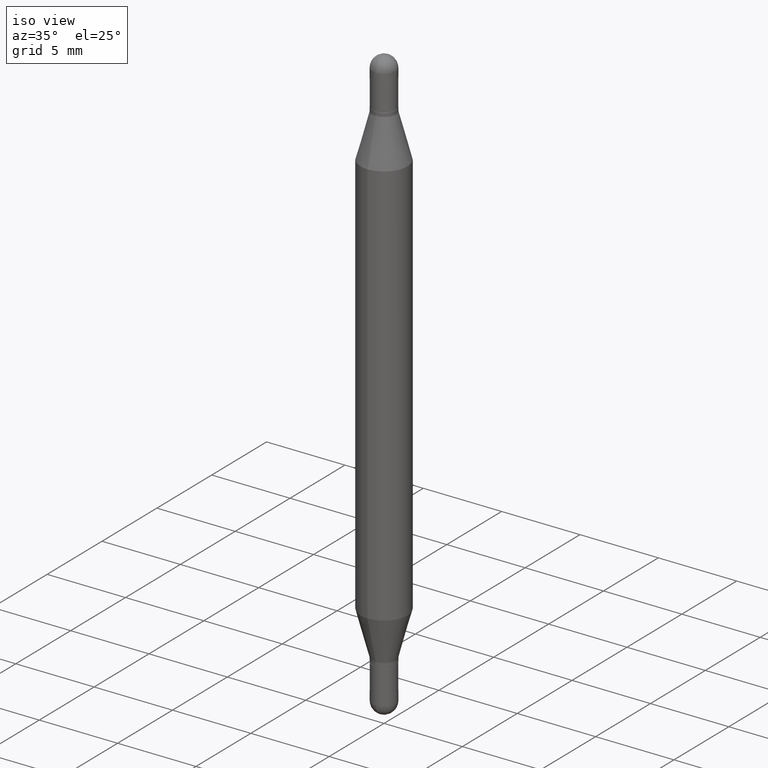
[diagram: clean part render]
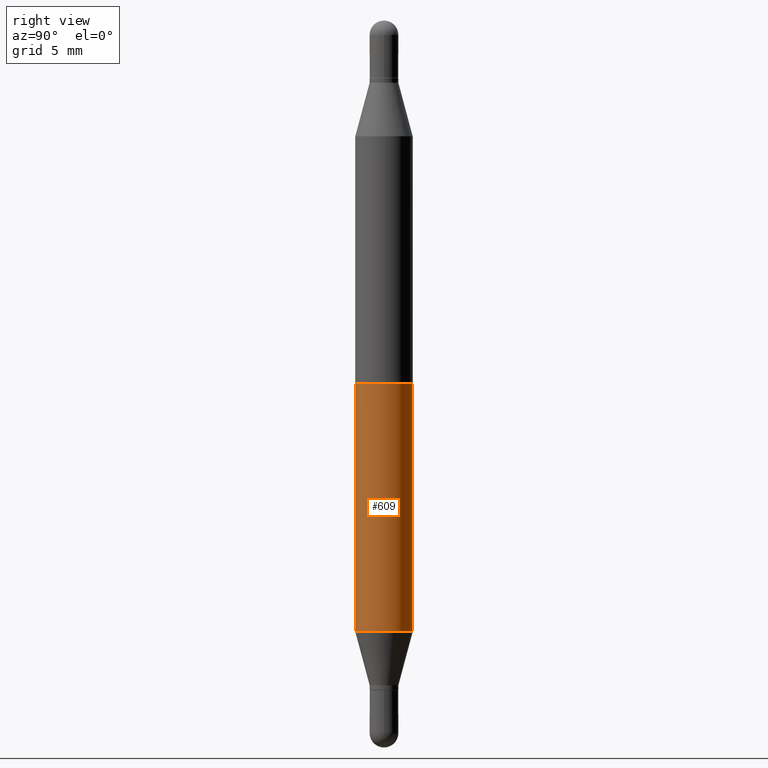
[diagram: tour spotlight — one face highlighted and labeled with its STEP entity id]
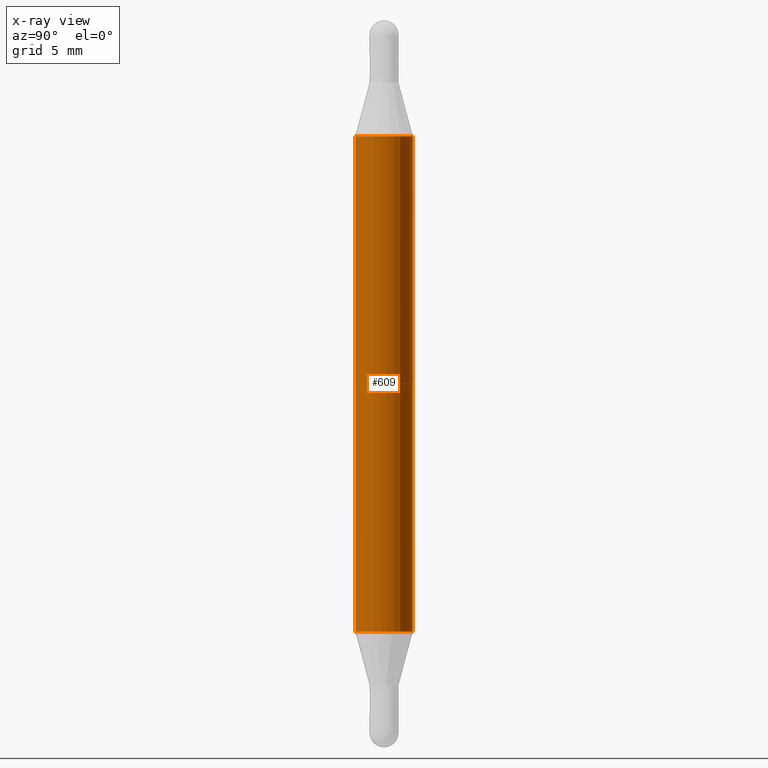
[diagram: x-ray of the same camera — body ghosted, this tour face saturated]
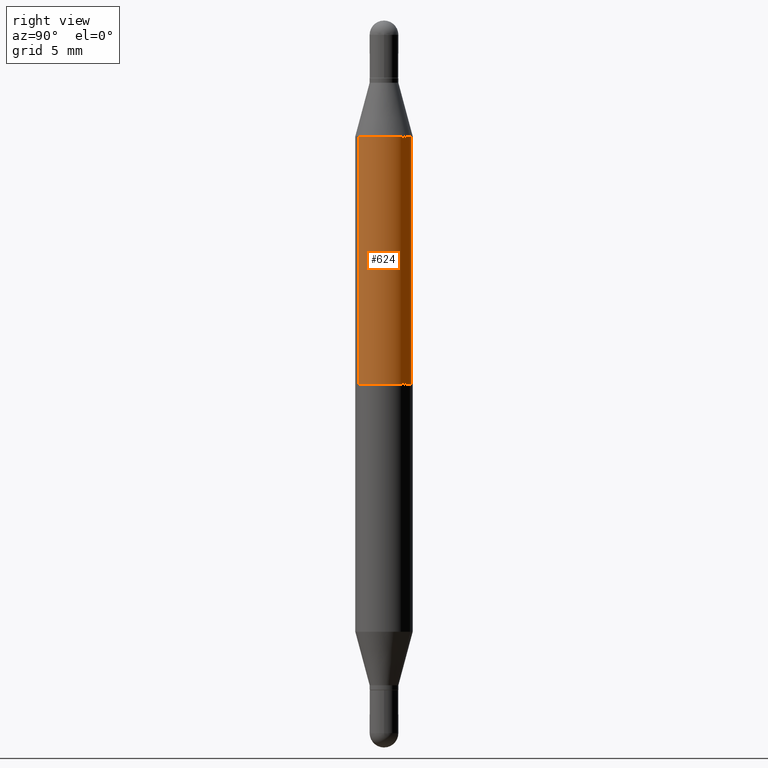
[diagram: tour spotlight — one face highlighted and labeled with its STEP entity id]
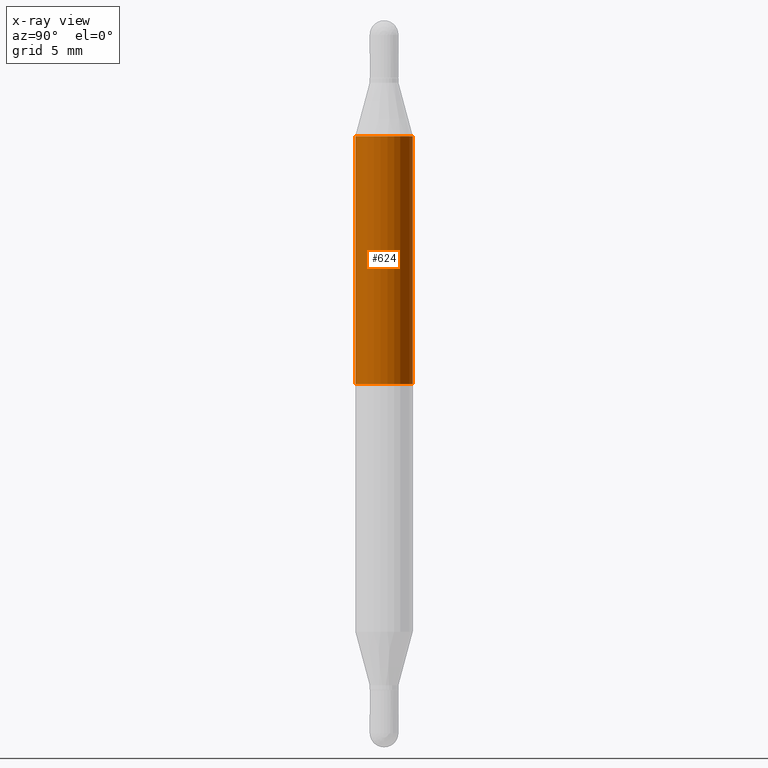
[diagram: x-ray of the same camera — body ghosted, this tour face saturated]
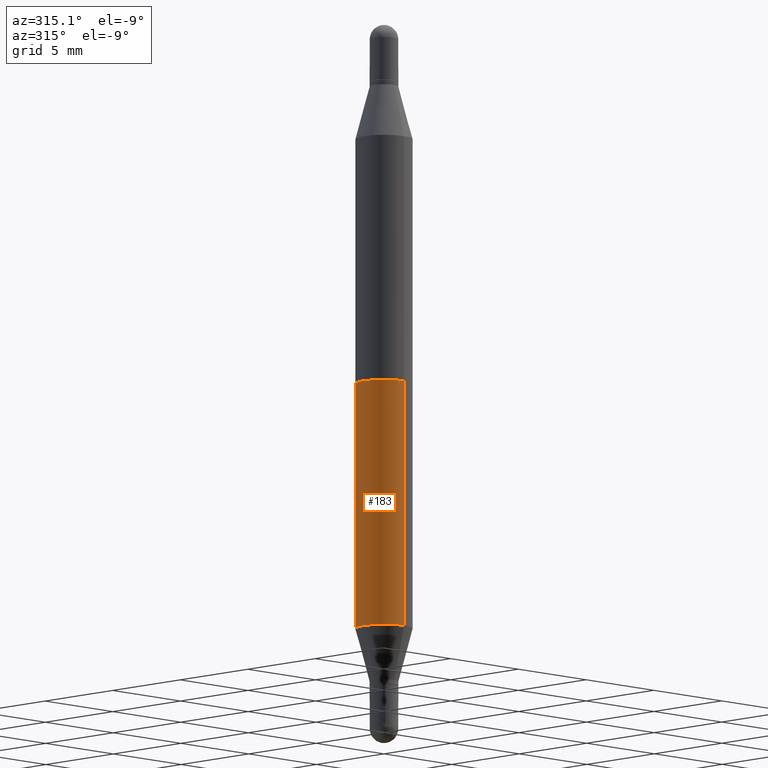
[diagram: tour spotlight — one face highlighted and labeled with its STEP entity id]
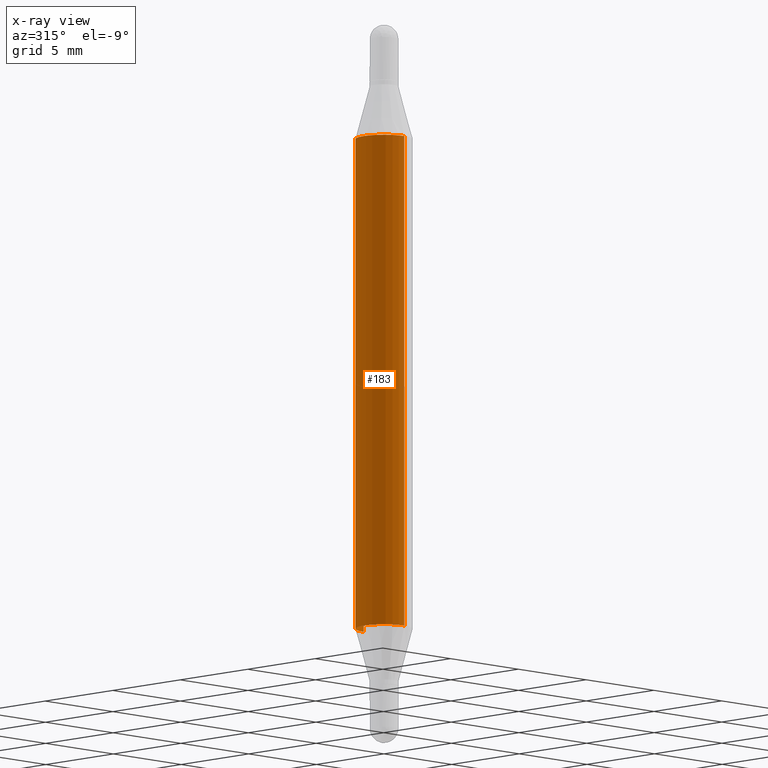
[diagram: x-ray of the same camera — body ghosted, this tour face saturated]
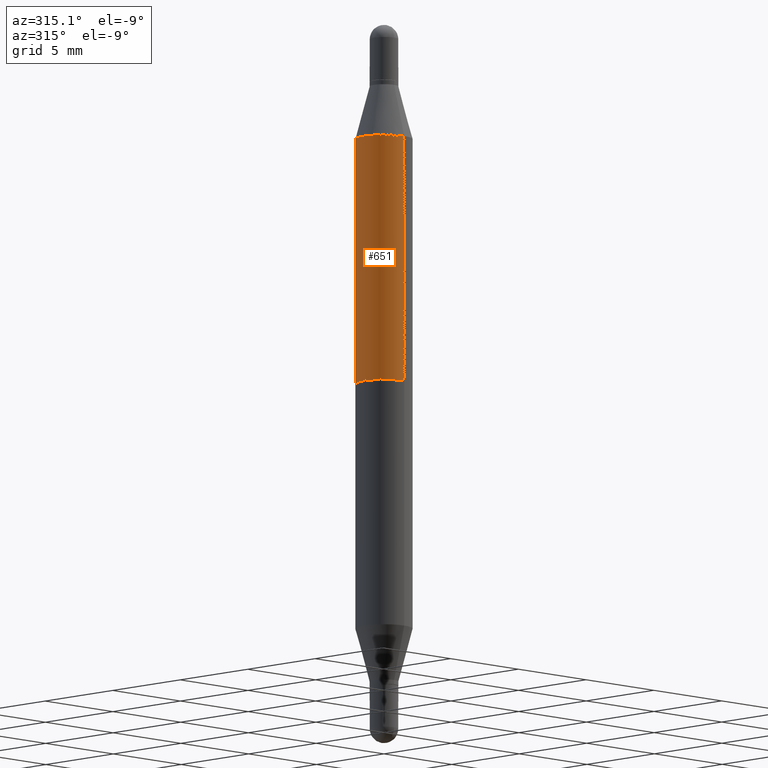
[diagram: tour spotlight — one face highlighted and labeled with its STEP entity id]
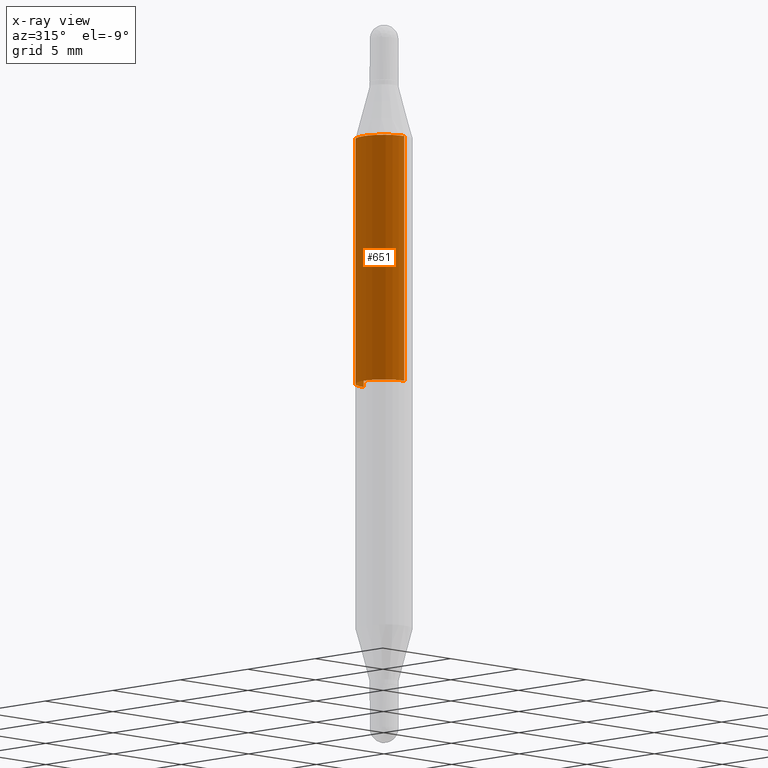
[diagram: x-ray of the same camera — body ghosted, this tour face saturated]
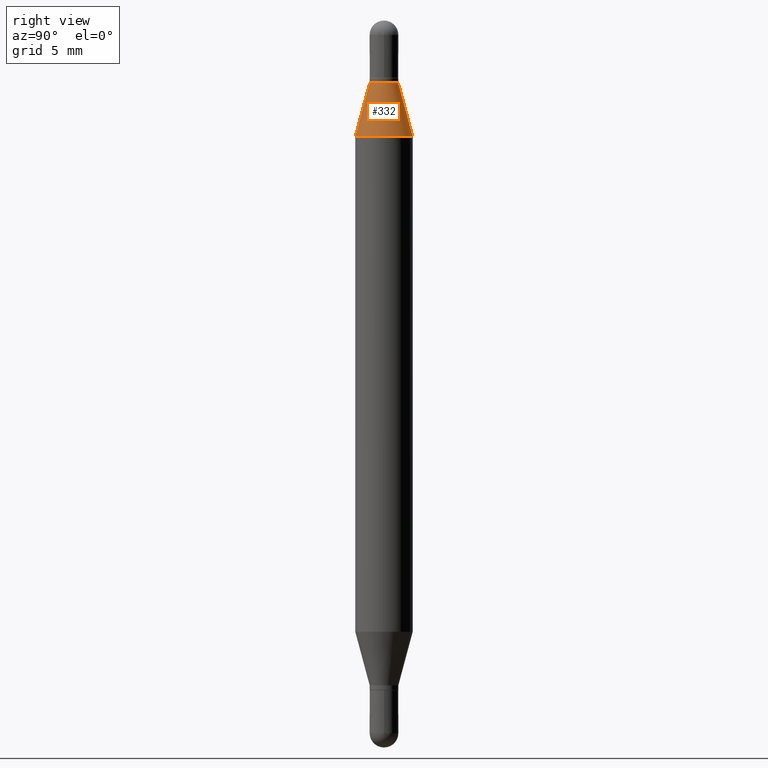
[diagram: tour spotlight — one face highlighted and labeled with its STEP entity id]
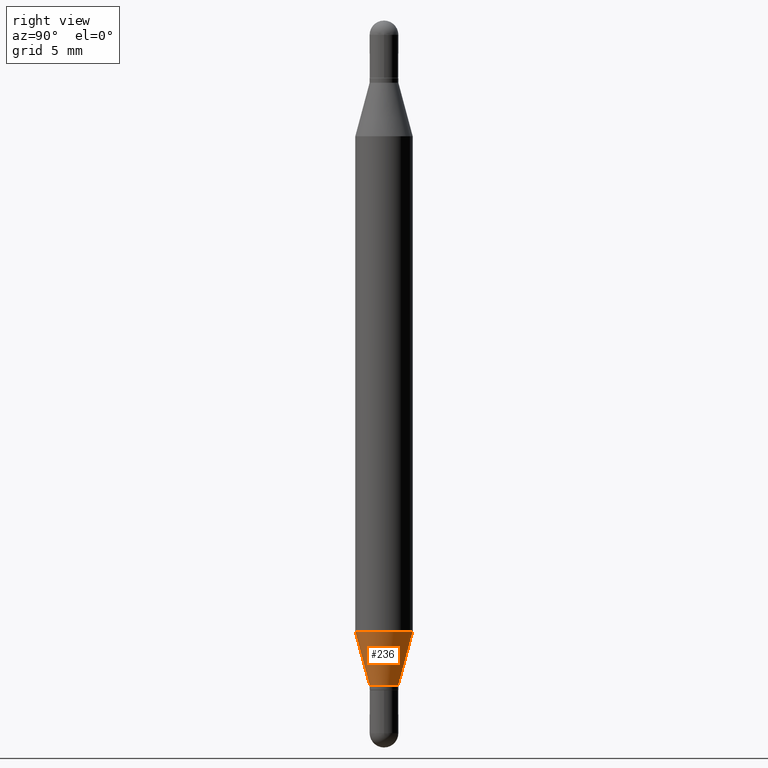
[diagram: tour spotlight — one face highlighted and labeled with its STEP entity id]
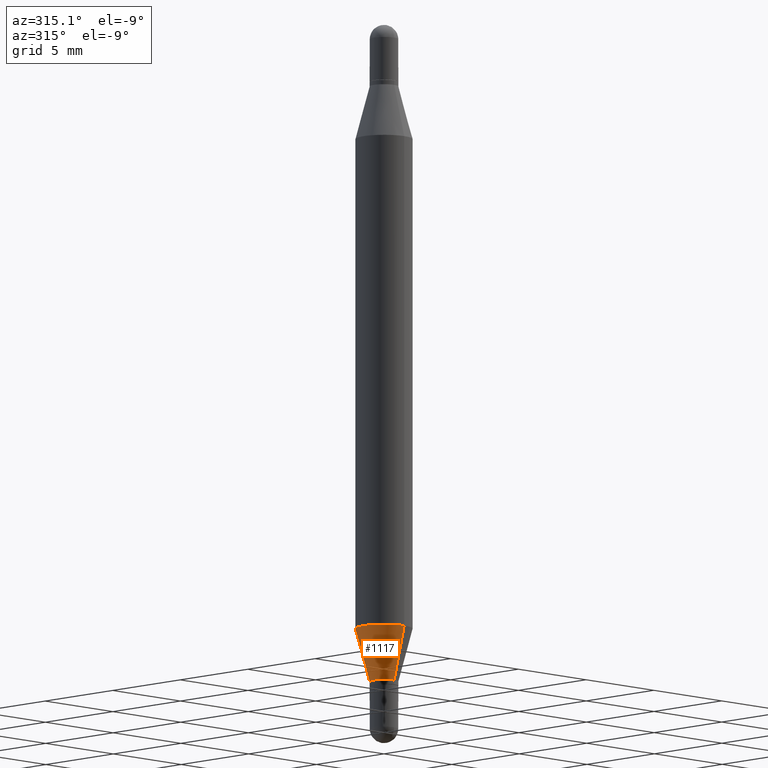
[diagram: tour spotlight — one face highlighted and labeled with its STEP entity id]
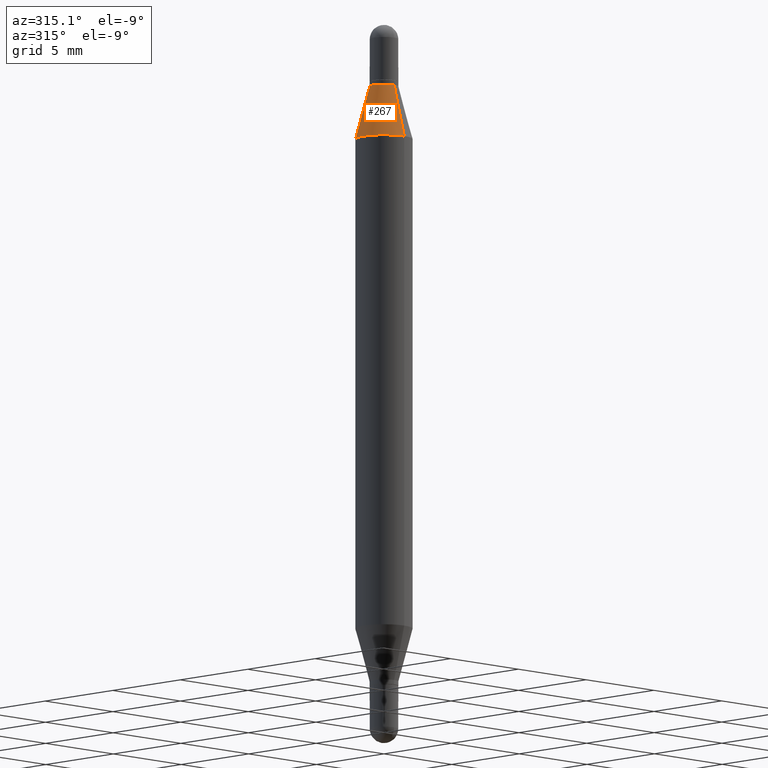
[diagram: tour spotlight — one face highlighted and labeled with its STEP entity id]
A machine part: a face-by-face anatomy tour. The part has 41 B-rep faces; the first image is the clean iso view, then the 8 largest visible faces are spotlighted one at a time (largest first), each with its STEP entity span.

Face 1 — right view, entity #609. An x-ray twin of the same camera follows (body ghosted, this face saturated) — the face is partly hidden behind the body. In plain terms, the highlighted cylindrical surface (edge-blend (fillet) strip) has radius 1.4999 mm, axis along (-0, -0, -1).
Definition (entity closure, byte-faithful):
#26 = DIRECTION ( 'NONE',  ( -2.445418291854792639E-29, -3.479542127581678408E-15, -1.000000000000000000 ) ) ;
#44 = ORIENTED_EDGE ( 'NONE', *, *, #782, .T. ) ;
#46 = EDGE_CURVE ( 'NONE', #538, #888, #864, .T. ) ;
#56 = CARTESIAN_POINT ( 'NONE',  ( 4.051124067684089175E-16, 0.05904999999999479415, -1.496100000000000207 ) ) ;
#86 = VECTOR ( 'NONE', #902, 39.37007874015748143 ) ;
#138 = CARTESIAN_POINT ( 'NONE',  ( 4.051124067684396338E-16, 0.05904999999999916566, -0.2380954988232819591 ) ) ;
#163 = DIRECTION ( 'NONE',  ( -6.982962677686265922E-15, -1.000000000000000000, 4.626330217890369336E-15 ) ) ;
#168 = DIRECTION ( 'NONE',  ( -2.445418291854792359E-29, -3.479542127581678408E-15, -1.000000000000000000 ) ) ;
#181 = CARTESIAN_POINT ( 'NONE',  ( 4.051124067684272093E-16, 0.05904999999999560600, -1.258004501176718470 ) ) ;
#186 = ORIENTED_EDGE ( 'NONE', *, *, #46, .F. ) ;
#235 = CARTESIAN_POINT ( 'NONE',  ( 0.000000000000000000, -5.214728217544379106E-15, -1.496099999999999985 ) ) ;
#265 = CIRCLE ( 'NONE', #899, 0.05904999999999999832 ) ;
#342 = FACE_OUTER_BOUND ( 'NONE', #1067, .T. ) ;
#353 = AXIS2_PLACEMENT_3D ( 'NONE', #481, #987, #835 ) ;
#404 = CYLINDRICAL_SURFACE ( 'NONE', #424, 0.05905000000000000526 ) ;
#419 = CARTESIAN_POINT ( 'NONE',  ( 3.076347218413210286E-29, -4.392390243325161053E-15, -1.258004501176718248 ) ) ;
#424 = AXIS2_PLACEMENT_3D ( 'NONE', #235, #168, #1108 ) ;
#481 = CARTESIAN_POINT ( 'NONE',  ( 3.076347218413210286E-29, -8.374485590126139581E-16, -0.2380954988232817371 ) ) ;
#538 = VERTEX_POINT ( 'NONE', #903 ) ;
#609 = ADVANCED_FACE ( 'NONE', ( #342 ), #404, .T. ) ;
#699 = LINE ( 'NONE', #1059, #1112 ) ;
#764 = VERTEX_POINT ( 'NONE', #181 ) ;
#782 = EDGE_CURVE ( 'NONE', #538, #993, #699, .T. ) ;
#835 = DIRECTION ( 'NONE',  ( -6.982962677686265922E-15, -1.000000000000000000, 3.469747663417777397E-15 ) ) ;
#864 = CIRCLE ( 'NONE', #353, 0.05904999999999999832 ) ;
#888 = VERTEX_POINT ( 'NONE', #138 ) ;
#895 = CARTESIAN_POINT ( 'NONE',  ( -4.123439461173432178E-16, -0.05905000000000439758, -1.258004501176717804 ) ) ;
#899 = AXIS2_PLACEMENT_3D ( 'NONE', #419, #1098, #163 ) ;
#902 = DIRECTION ( 'NONE',  ( -2.445418291854792639E-29, -3.479542127581678408E-15, -1.000000000000000000 ) ) ;
#903 = CARTESIAN_POINT ( 'NONE',  ( -4.123439461173433164E-16, -0.05905000000000083793, -0.2380954988232815428 ) ) ;
#956 = ORIENTED_EDGE ( 'NONE', *, *, #1071, .T. ) ;
#980 = EDGE_CURVE ( 'NONE', #888, #764, #998, .T. ) ;
#987 = DIRECTION ( 'NONE',  ( 2.445418291854792359E-29, 3.479542127581678408E-15, 1.000000000000000000 ) ) ;
#993 = VERTEX_POINT ( 'NONE', #895 ) ;
#998 = LINE ( 'NONE', #56, #86 ) ;
#1051 = ORIENTED_EDGE ( 'NONE', *, *, #980, .F. ) ;
#1059 = CARTESIAN_POINT ( 'NONE',  ( -4.123439461173740327E-16, -0.05905000000000522331, -1.496099999999999541 ) ) ;
#1067 = EDGE_LOOP ( 'NONE', ( #1051, #186, #44, #956 ) ) ;
#1071 = EDGE_CURVE ( 'NONE', #993, #764, #265, .T. ) ;
#1098 = DIRECTION ( 'NONE',  ( -2.445418291854792359E-29, 3.491553678239295429E-15, 1.000000000000000000 ) ) ;
#1108 = DIRECTION ( 'NONE',  ( -6.982962677686265922E-15, -1.000000000000000000, 4.626330217890369336E-15 ) ) ;
#1112 = VECTOR ( 'NONE', #26, 39.37007874015748143 ) ;

Face 2 — right view, entity #624. An x-ray twin of the same camera follows (body ghosted, this face saturated) — the face is partly hidden behind the body. In plain terms, the highlighted cylindrical surface (edge-blend (fillet) strip) has radius 1.4999 mm, axis along (-0, -0, -1).
Definition (entity closure, byte-faithful):
#73 = EDGE_CURVE ( 'NONE', #1035, #668, #234, .T. ) ;
#187 = CARTESIAN_POINT ( 'NONE',  ( 4.051124067684089175E-16, 0.05904999999999479415, -1.496100000000000207 ) ) ;
#234 = LINE ( 'NONE', #573, #427 ) ;
#260 = CARTESIAN_POINT ( 'NONE',  ( -4.123439461173557903E-16, -0.05905000000000262123, -0.7480499999999996597 ) ) ;
#266 = LINE ( 'NONE', #187, #658 ) ;
#297 = CARTESIAN_POINT ( 'NONE',  ( 4.051124067684396338E-16, 0.05904999999999916566, -0.2380954988232819591 ) ) ;
#308 = DIRECTION ( 'NONE',  ( 2.445418291854792359E-29, 3.479542127581678408E-15, 1.000000000000000000 ) ) ;
#322 = CARTESIAN_POINT ( 'NONE',  ( -4.123439461173433164E-16, -0.05905000000000083793, -0.2380954988232815428 ) ) ;
#327 = FACE_OUTER_BOUND ( 'NONE', #1070, .T. ) ;
#418 = VERTEX_POINT ( 'NONE', #297 ) ;
#427 = VECTOR ( 'NONE', #740, 39.37007874015748143 ) ;
#467 = CARTESIAN_POINT ( 'NONE',  ( 3.076347218413210286E-29, -8.374485590126139581E-16, -0.2380954988232817371 ) ) ;
#477 = CIRCLE ( 'NONE', #930, 0.05905000000000000526 ) ;
#503 = ORIENTED_EDGE ( 'NONE', *, *, #1001, .F. ) ;
#511 = DIRECTION ( 'NONE',  ( -2.445418291854792359E-29, -3.479542127581678408E-15, -1.000000000000000000 ) ) ;
#535 = AXIS2_PLACEMENT_3D ( 'NONE', #467, #308, #647 ) ;
#573 = CARTESIAN_POINT ( 'NONE',  ( -4.123439461173740327E-16, -0.05905000000000522331, -1.496099999999999541 ) ) ;
#576 = CYLINDRICAL_SURFACE ( 'NONE', #988, 0.05905000000000000526 ) ;
#581 = DIRECTION ( 'NONE',  ( -6.982962677686265922E-15, -1.000000000000000000, 4.626330217890369336E-15 ) ) ;
#624 = ADVANCED_FACE ( 'NONE', ( #327 ), #576, .T. ) ;
#640 = ORIENTED_EDGE ( 'NONE', *, *, #73, .T. ) ;
#647 = DIRECTION ( 'NONE',  ( -6.982962677686265922E-15, -1.000000000000000000, 3.469747663417777397E-15 ) ) ;
#658 = VECTOR ( 'NONE', #779, 39.37007874015748143 ) ;
#668 = VERTEX_POINT ( 'NONE', #260 ) ;
#676 = EDGE_CURVE ( 'NONE', #893, #668, #477, .T. ) ;
#726 = CARTESIAN_POINT ( 'NONE',  ( 4.051124067684334215E-16, 0.05904999999999739624, -0.7480500000000002148 ) ) ;
#740 = DIRECTION ( 'NONE',  ( -2.445418291854792639E-29, -3.479542127581678408E-15, -1.000000000000000000 ) ) ;
#743 = EDGE_CURVE ( 'NONE', #418, #893, #266, .T. ) ;
#766 = DIRECTION ( 'NONE',  ( -0.000000000000000000, -3.485547902910486918E-15, -1.000000000000000000 ) ) ;
#779 = DIRECTION ( 'NONE',  ( -2.445418291854792639E-29, -3.479542127581678408E-15, -1.000000000000000000 ) ) ;
#849 = DIRECTION ( 'NONE',  ( 0.000000000000000000, 1.000000000000000000, -4.626330217890369336E-15 ) ) ;
#893 = VERTEX_POINT ( 'NONE', #726 ) ;
#930 = AXIS2_PLACEMENT_3D ( 'NONE', #949, #766, #849 ) ;
#944 = CARTESIAN_POINT ( 'NONE',  ( 0.000000000000000000, -5.214728217544379106E-15, -1.496099999999999985 ) ) ;
#946 = ORIENTED_EDGE ( 'NONE', *, *, #743, .F. ) ;
#949 = CARTESIAN_POINT ( 'NONE',  ( 1.829295153221977262E-29, -2.611856729006904585E-15, -0.7480499999999999927 ) ) ;
#988 = AXIS2_PLACEMENT_3D ( 'NONE', #944, #511, #581 ) ;
#989 = CIRCLE ( 'NONE', #535, 0.05904999999999999832 ) ;
#1000 = ORIENTED_EDGE ( 'NONE', *, *, #676, .F. ) ;
#1001 = EDGE_CURVE ( 'NONE', #1035, #418, #989, .T. ) ;
#1035 = VERTEX_POINT ( 'NONE', #322 ) ;
#1070 = EDGE_LOOP ( 'NONE', ( #946, #503, #640, #1000 ) ) ;

Face 3 — auxiliary view, entity #183. An x-ray twin of the same camera follows (body ghosted, this face saturated) — the face is partly hidden behind the body. In plain terms, the highlighted cylindrical surface (edge-blend (fillet) strip) has radius 1.4999 mm, axis along (-0, -0, -1).
Definition (entity closure, byte-faithful):
#24 = ORIENTED_EDGE ( 'NONE', *, *, #132, .F. ) ;
#26 = DIRECTION ( 'NONE',  ( -2.445418291854792639E-29, -3.479542127581678408E-15, -1.000000000000000000 ) ) ;
#48 = DIRECTION ( 'NONE',  ( -6.982962677686265922E-15, -1.000000000000000000, 4.626330217890369336E-15 ) ) ;
#56 = CARTESIAN_POINT ( 'NONE',  ( 4.051124067684089175E-16, 0.05904999999999479415, -1.496100000000000207 ) ) ;
#66 = EDGE_CURVE ( 'NONE', #764, #993, #245, .T. ) ;
#86 = VECTOR ( 'NONE', #902, 39.37007874015748143 ) ;
#90 = DIRECTION ( 'NONE',  ( -6.982962677686265922E-15, -1.000000000000000000, 3.469747663417777397E-15 ) ) ;
#126 = CIRCLE ( 'NONE', #1044, 0.05904999999999999832 ) ;
#132 = EDGE_CURVE ( 'NONE', #888, #538, #126, .T. ) ;
#138 = CARTESIAN_POINT ( 'NONE',  ( 4.051124067684396338E-16, 0.05904999999999916566, -0.2380954988232819591 ) ) ;
#181 = CARTESIAN_POINT ( 'NONE',  ( 4.051124067684272093E-16, 0.05904999999999560600, -1.258004501176718470 ) ) ;
#183 = ADVANCED_FACE ( 'NONE', ( #861 ), #1037, .T. ) ;
#237 = CARTESIAN_POINT ( 'NONE',  ( 0.000000000000000000, -5.214728217544379106E-15, -1.496099999999999985 ) ) ;
#240 = DIRECTION ( 'NONE',  ( -6.982962677686265922E-15, -1.000000000000000000, 4.626330217890369336E-15 ) ) ;
#245 = CIRCLE ( 'NONE', #717, 0.05904999999999999832 ) ;
#249 = CARTESIAN_POINT ( 'NONE',  ( 3.076347218413210286E-29, -8.374485590126139581E-16, -0.2380954988232817371 ) ) ;
#330 = EDGE_LOOP ( 'NONE', ( #24, #365, #720, #754 ) ) ;
#365 = ORIENTED_EDGE ( 'NONE', *, *, #980, .T. ) ;
#402 = DIRECTION ( 'NONE',  ( -2.445418291854792359E-29, 3.491553678239295429E-15, 1.000000000000000000 ) ) ;
#502 = DIRECTION ( 'NONE',  ( 2.445418291854792359E-29, 3.479542127581678408E-15, 1.000000000000000000 ) ) ;
#518 = AXIS2_PLACEMENT_3D ( 'NONE', #237, #1109, #240 ) ;
#538 = VERTEX_POINT ( 'NONE', #903 ) ;
#699 = LINE ( 'NONE', #1059, #1112 ) ;
#717 = AXIS2_PLACEMENT_3D ( 'NONE', #744, #402, #48 ) ;
#720 = ORIENTED_EDGE ( 'NONE', *, *, #66, .T. ) ;
#744 = CARTESIAN_POINT ( 'NONE',  ( 3.076347218413210286E-29, -4.392390243325161053E-15, -1.258004501176718248 ) ) ;
#754 = ORIENTED_EDGE ( 'NONE', *, *, #782, .F. ) ;
#764 = VERTEX_POINT ( 'NONE', #181 ) ;
#782 = EDGE_CURVE ( 'NONE', #538, #993, #699, .T. ) ;
#861 = FACE_OUTER_BOUND ( 'NONE', #330, .T. ) ;
#888 = VERTEX_POINT ( 'NONE', #138 ) ;
#895 = CARTESIAN_POINT ( 'NONE',  ( -4.123439461173432178E-16, -0.05905000000000439758, -1.258004501176717804 ) ) ;
#902 = DIRECTION ( 'NONE',  ( -2.445418291854792639E-29, -3.479542127581678408E-15, -1.000000000000000000 ) ) ;
#903 = CARTESIAN_POINT ( 'NONE',  ( -4.123439461173433164E-16, -0.05905000000000083793, -0.2380954988232815428 ) ) ;
#980 = EDGE_CURVE ( 'NONE', #888, #764, #998, .T. ) ;
#993 = VERTEX_POINT ( 'NONE', #895 ) ;
#998 = LINE ( 'NONE', #56, #86 ) ;
#1037 = CYLINDRICAL_SURFACE ( 'NONE', #518, 0.05905000000000000526 ) ;
#1044 = AXIS2_PLACEMENT_3D ( 'NONE', #249, #502, #90 ) ;
#1059 = CARTESIAN_POINT ( 'NONE',  ( -4.123439461173740327E-16, -0.05905000000000522331, -1.496099999999999541 ) ) ;
#1109 = DIRECTION ( 'NONE',  ( -2.445418291854792359E-29, -3.479542127581678408E-15, -1.000000000000000000 ) ) ;
#1112 = VECTOR ( 'NONE', #26, 39.37007874015748143 ) ;

Face 4 — auxiliary view, entity #651. An x-ray twin of the same camera follows (body ghosted, this face saturated) — the face is partly hidden behind the body. In plain terms, the highlighted cylindrical surface (edge-blend (fillet) strip) has radius 1.4999 mm, axis along (-0, -0, -1).
Definition (entity closure, byte-faithful):
#39 = ORIENTED_EDGE ( 'NONE', *, *, #743, .T. ) ;
#53 = CARTESIAN_POINT ( 'NONE',  ( 1.829295153221977262E-29, -2.611856729006904585E-15, -0.7480499999999999927 ) ) ;
#73 = EDGE_CURVE ( 'NONE', #1035, #668, #234, .T. ) ;
#95 = EDGE_CURVE ( 'NONE', #418, #1035, #229, .T. ) ;
#150 = DIRECTION ( 'NONE',  ( 2.445418291854792359E-29, 3.479542127581678408E-15, 1.000000000000000000 ) ) ;
#187 = CARTESIAN_POINT ( 'NONE',  ( 4.051124067684089175E-16, 0.05904999999999479415, -1.496100000000000207 ) ) ;
#229 = CIRCLE ( 'NONE', #497, 0.05904999999999999832 ) ;
#234 = LINE ( 'NONE', #573, #427 ) ;
#239 = DIRECTION ( 'NONE',  ( -2.445418291854792359E-29, -3.479542127581678408E-15, -1.000000000000000000 ) ) ;
#260 = CARTESIAN_POINT ( 'NONE',  ( -4.123439461173557903E-16, -0.05905000000000262123, -0.7480499999999996597 ) ) ;
#266 = LINE ( 'NONE', #187, #658 ) ;
#293 = ORIENTED_EDGE ( 'NONE', *, *, #432, .F. ) ;
#297 = CARTESIAN_POINT ( 'NONE',  ( 4.051124067684396338E-16, 0.05904999999999916566, -0.2380954988232819591 ) ) ;
#302 = DIRECTION ( 'NONE',  ( -0.000000000000000000, -3.485547902910486918E-15, -1.000000000000000000 ) ) ;
#305 = CARTESIAN_POINT ( 'NONE',  ( 3.076347218413210286E-29, -8.374485590126139581E-16, -0.2380954988232817371 ) ) ;
#322 = CARTESIAN_POINT ( 'NONE',  ( -4.123439461173433164E-16, -0.05905000000000083793, -0.2380954988232815428 ) ) ;
#418 = VERTEX_POINT ( 'NONE', #297 ) ;
#427 = VECTOR ( 'NONE', #740, 39.37007874015748143 ) ;
#430 = DIRECTION ( 'NONE',  ( -6.982962677686265922E-15, -1.000000000000000000, 4.626330217890369336E-15 ) ) ;
#432 = EDGE_CURVE ( 'NONE', #668, #893, #482, .T. ) ;
#482 = CIRCLE ( 'NONE', #586, 0.05905000000000000526 ) ;
#497 = AXIS2_PLACEMENT_3D ( 'NONE', #305, #150, #819 ) ;
#563 = EDGE_LOOP ( 'NONE', ( #621, #39, #293, #894 ) ) ;
#573 = CARTESIAN_POINT ( 'NONE',  ( -4.123439461173740327E-16, -0.05905000000000522331, -1.496099999999999541 ) ) ;
#582 = AXIS2_PLACEMENT_3D ( 'NONE', #1104, #239, #430 ) ;
#586 = AXIS2_PLACEMENT_3D ( 'NONE', #53, #302, #1003 ) ;
#621 = ORIENTED_EDGE ( 'NONE', *, *, #95, .F. ) ;
#651 = ADVANCED_FACE ( 'NONE', ( #666 ), #933, .T. ) ;
#658 = VECTOR ( 'NONE', #779, 39.37007874015748143 ) ;
#666 = FACE_OUTER_BOUND ( 'NONE', #563, .T. ) ;
#668 = VERTEX_POINT ( 'NONE', #260 ) ;
#726 = CARTESIAN_POINT ( 'NONE',  ( 4.051124067684334215E-16, 0.05904999999999739624, -0.7480500000000002148 ) ) ;
#740 = DIRECTION ( 'NONE',  ( -2.445418291854792639E-29, -3.479542127581678408E-15, -1.000000000000000000 ) ) ;
#743 = EDGE_CURVE ( 'NONE', #418, #893, #266, .T. ) ;
#779 = DIRECTION ( 'NONE',  ( -2.445418291854792639E-29, -3.479542127581678408E-15, -1.000000000000000000 ) ) ;
#819 = DIRECTION ( 'NONE',  ( -6.982962677686265922E-15, -1.000000000000000000, 3.469747663417777397E-15 ) ) ;
#893 = VERTEX_POINT ( 'NONE', #726 ) ;
#894 = ORIENTED_EDGE ( 'NONE', *, *, #73, .F. ) ;
#933 = CYLINDRICAL_SURFACE ( 'NONE', #582, 0.05905000000000000526 ) ;
#1003 = DIRECTION ( 'NONE',  ( 0.000000000000000000, 1.000000000000000000, -4.626330217890369336E-15 ) ) ;
#1035 = VERTEX_POINT ( 'NONE', #322 ) ;
#1104 = CARTESIAN_POINT ( 'NONE',  ( 0.000000000000000000, -5.214728217544379106E-15, -1.496099999999999985 ) ) ;

Face 5 — right view, entity #332. In plain terms, the highlighted conical surface has half-angle 15 deg.
Definition (entity closure, byte-faithful):
#61 = CARTESIAN_POINT ( 'NONE',  ( 2.027277158341816396E-16, 0.02954999999999946558, -0.1280000000000002247 ) ) ;
#63 = CARTESIAN_POINT ( 'NONE',  ( -2.063465471255951471E-16, -0.02955000000000037111, -0.1280000000000000027 ) ) ;
#91 = VERTEX_POINT ( 'NONE', #63 ) ;
#100 = CARTESIAN_POINT ( 'NONE',  ( 3.345576765086540721E-29, -4.543666327998865976E-16, -0.1280000000000001137 ) ) ;
#111 = ORIENTED_EDGE ( 'NONE', *, *, #303, .T. ) ;
#112 = CARTESIAN_POINT ( 'NONE',  ( 2.027277158341817629E-16, 0.02954999999999946558, -0.1280000000000002247 ) ) ;
#113 = CARTESIAN_POINT ( 'NONE',  ( -2.063465471255951471E-16, -0.02955000000000037111, -0.1280000000000000027 ) ) ;
#171 = CIRCLE ( 'NONE', #242, 0.02954999999999992008 ) ;
#242 = AXIS2_PLACEMENT_3D ( 'NONE', #599, #1029, #844 ) ;
#285 = DIRECTION ( 'NONE',  ( -1.807323732225332900E-15, -0.2588190451025253469, -0.9659258262890670910 ) ) ;
#294 = ORIENTED_EDGE ( 'NONE', *, *, #588, .F. ) ;
#297 = CARTESIAN_POINT ( 'NONE',  ( 4.051124067684396338E-16, 0.05904999999999916566, -0.2380954988232819591 ) ) ;
#303 = EDGE_CURVE ( 'NONE', #91, #1035, #439, .T. ) ;
#307 = ORIENTED_EDGE ( 'NONE', *, *, #1096, .F. ) ;
#308 = DIRECTION ( 'NONE',  ( 2.445418291854792359E-29, 3.479542127581678408E-15, 1.000000000000000000 ) ) ;
#322 = CARTESIAN_POINT ( 'NONE',  ( -4.123439461173433164E-16, -0.05905000000000083793, -0.2380954988232815428 ) ) ;
#332 = ADVANCED_FACE ( 'NONE', ( #968 ), #934, .T. ) ;
#370 = EDGE_LOOP ( 'NONE', ( #307, #294, #111, #936 ) ) ;
#418 = VERTEX_POINT ( 'NONE', #297 ) ;
#423 = AXIS2_PLACEMENT_3D ( 'NONE', #100, #531, #1043 ) ;
#439 = LINE ( 'NONE', #113, #566 ) ;
#467 = CARTESIAN_POINT ( 'NONE',  ( 3.076347218413210286E-29, -8.374485590126139581E-16, -0.2380954988232817371 ) ) ;
#531 = DIRECTION ( 'NONE',  ( -2.445418291854792359E-29, -3.479542127581678408E-15, -1.000000000000000000 ) ) ;
#535 = AXIS2_PLACEMENT_3D ( 'NONE', #467, #308, #647 ) ;
#566 = VECTOR ( 'NONE', #285, 39.37007874015748143 ) ;
#588 = EDGE_CURVE ( 'NONE', #91, #791, #171, .T. ) ;
#599 = CARTESIAN_POINT ( 'NONE',  ( 3.345576765086540721E-29, -4.543666327998865976E-16, -0.1280000000000001137 ) ) ;
#647 = DIRECTION ( 'NONE',  ( -6.982962677686265922E-15, -1.000000000000000000, 3.469747663417777397E-15 ) ) ;
#680 = DIRECTION ( 'NONE',  ( 1.775627540710967864E-15, 0.2588190451025185745, -0.9659258262890689783 ) ) ;
#765 = LINE ( 'NONE', #61, #880 ) ;
#791 = VERTEX_POINT ( 'NONE', #112 ) ;
#844 = DIRECTION ( 'NONE',  ( -6.982962677686265922E-15, -1.000000000000000000, 3.466812174700850954E-15 ) ) ;
#880 = VECTOR ( 'NONE', #680, 39.37007874015748143 ) ;
#934 = CONICAL_SURFACE ( 'NONE', #423, 0.02954999999999992008, 0.2617993877991506846 ) ;
#936 = ORIENTED_EDGE ( 'NONE', *, *, #1001, .T. ) ;
#968 = FACE_OUTER_BOUND ( 'NONE', #370, .T. ) ;
#989 = CIRCLE ( 'NONE', #535, 0.05904999999999999832 ) ;
#1001 = EDGE_CURVE ( 'NONE', #1035, #418, #989, .T. ) ;
#1029 = DIRECTION ( 'NONE',  ( 2.445418291854792359E-29, 3.479542127581678408E-15, 1.000000000000000000 ) ) ;
#1035 = VERTEX_POINT ( 'NONE', #322 ) ;
#1043 = DIRECTION ( 'NONE',  ( -6.982962677686265922E-15, -1.000000000000000000, 3.466812174700850954E-15 ) ) ;
#1096 = EDGE_CURVE ( 'NONE', #791, #418, #765, .T. ) ;

Face 6 — right view, entity #236. In plain terms, the highlighted conical surface has half-angle 15 deg.
Definition (entity closure, byte-faithful):
#99 = CARTESIAN_POINT ( 'NONE',  ( 3.345576765086540721E-29, -4.776794587199180145E-15, -1.368099999999999872 ) ) ;
#129 = LINE ( 'NONE', #385, #156 ) ;
#154 = CIRCLE ( 'NONE', #1021, 0.02954999999999992008 ) ;
#156 = VECTOR ( 'NONE', #396, 39.37007874015748143 ) ;
#163 = DIRECTION ( 'NONE',  ( -6.982962677686265922E-15, -1.000000000000000000, 4.626330217890369336E-15 ) ) ;
#181 = CARTESIAN_POINT ( 'NONE',  ( 4.051124067684272093E-16, 0.05904999999999560600, -1.258004501176718470 ) ) ;
#182 = CARTESIAN_POINT ( 'NONE',  ( -2.063465471255951471E-16, -0.02955000000000469751, -1.368099999999999872 ) ) ;
#203 = ORIENTED_EDGE ( 'NONE', *, *, #762, .T. ) ;
#236 = ADVANCED_FACE ( 'NONE', ( #952 ), #429, .T. ) ;
#265 = CIRCLE ( 'NONE', #899, 0.05904999999999999832 ) ;
#280 = VERTEX_POINT ( 'NONE', #963 ) ;
#306 = AXIS2_PLACEMENT_3D ( 'NONE', #338, #682, #596 ) ;
#315 = EDGE_CURVE ( 'NONE', #1084, #993, #1069, .T. ) ;
#338 = CARTESIAN_POINT ( 'NONE',  ( 3.345576765086540721E-29, -4.776794587199180145E-15, -1.368099999999999872 ) ) ;
#339 = EDGE_LOOP ( 'NONE', ( #203, #672, #425, #759 ) ) ;
#385 = CARTESIAN_POINT ( 'NONE',  ( 2.099653784171424650E-16, 0.02954999999999514265, -1.368099999999999872 ) ) ;
#396 = DIRECTION ( 'NONE',  ( 1.839019923739603076E-15, 0.2588190451025253469, 0.9659258262890670910 ) ) ;
#419 = CARTESIAN_POINT ( 'NONE',  ( 3.076347218413210286E-29, -4.392390243325161053E-15, -1.258004501176718248 ) ) ;
#425 = ORIENTED_EDGE ( 'NONE', *, *, #1071, .F. ) ;
#429 = CONICAL_SURFACE ( 'NONE', #306, 0.02954999999999992008, 0.2617993877991506846 ) ;
#530 = DIRECTION ( 'NONE',  ( -6.982962677686265922E-15, -1.000000000000000000, 0.000000000000000000 ) ) ;
#596 = DIRECTION ( 'NONE',  ( -6.982962677686265922E-15, -1.000000000000000000, 0.000000000000000000 ) ) ;
#614 = DIRECTION ( 'NONE',  ( -1.807323732225332900E-15, -0.2588190451025185745, 0.9659258262890689783 ) ) ;
#672 = ORIENTED_EDGE ( 'NONE', *, *, #862, .T. ) ;
#682 = DIRECTION ( 'NONE',  ( -2.445418291854792359E-29, 3.491553678239295429E-15, 1.000000000000000000 ) ) ;
#711 = DIRECTION ( 'NONE',  ( -2.445418291854792359E-29, 3.491553678239295429E-15, 1.000000000000000000 ) ) ;
#759 = ORIENTED_EDGE ( 'NONE', *, *, #315, .F. ) ;
#762 = EDGE_CURVE ( 'NONE', #1084, #280, #154, .T. ) ;
#764 = VERTEX_POINT ( 'NONE', #181 ) ;
#862 = EDGE_CURVE ( 'NONE', #280, #764, #129, .T. ) ;
#882 = VECTOR ( 'NONE', #614, 39.37007874015748143 ) ;
#895 = CARTESIAN_POINT ( 'NONE',  ( -4.123439461173432178E-16, -0.05905000000000439758, -1.258004501176717804 ) ) ;
#899 = AXIS2_PLACEMENT_3D ( 'NONE', #419, #1098, #163 ) ;
#952 = FACE_OUTER_BOUND ( 'NONE', #339, .T. ) ;
#963 = CARTESIAN_POINT ( 'NONE',  ( 2.099653784171427362E-16, 0.02954999999999514612, -1.368099999999999872 ) ) ;
#993 = VERTEX_POINT ( 'NONE', #895 ) ;
#1021 = AXIS2_PLACEMENT_3D ( 'NONE', #99, #711, #530 ) ;
#1069 = LINE ( 'NONE', #182, #882 ) ;
#1071 = EDGE_CURVE ( 'NONE', #993, #764, #265, .T. ) ;
#1084 = VERTEX_POINT ( 'NONE', #1107 ) ;
#1098 = DIRECTION ( 'NONE',  ( -2.445418291854792359E-29, 3.491553678239295429E-15, 1.000000000000000000 ) ) ;
#1107 = CARTESIAN_POINT ( 'NONE',  ( -2.063465471255951471E-16, -0.02955000000000469751, -1.368099999999999872 ) ) ;

Face 7 — auxiliary view, entity #1117. In plain terms, the highlighted conical surface has half-angle 15 deg.
Definition (entity closure, byte-faithful):
#48 = DIRECTION ( 'NONE',  ( -6.982962677686265922E-15, -1.000000000000000000, 4.626330217890369336E-15 ) ) ;
#50 = CONICAL_SURFACE ( 'NONE', #426, 0.02954999999999992008, 0.2617993877991506846 ) ;
#66 = EDGE_CURVE ( 'NONE', #764, #993, #245, .T. ) ;
#129 = LINE ( 'NONE', #385, #156 ) ;
#156 = VECTOR ( 'NONE', #396, 39.37007874015748143 ) ;
#181 = CARTESIAN_POINT ( 'NONE',  ( 4.051124067684272093E-16, 0.05904999999999560600, -1.258004501176718470 ) ) ;
#182 = CARTESIAN_POINT ( 'NONE',  ( -2.063465471255951471E-16, -0.02955000000000469751, -1.368099999999999872 ) ) ;
#245 = CIRCLE ( 'NONE', #717, 0.05904999999999999832 ) ;
#268 = CIRCLE ( 'NONE', #992, 0.02954999999999992008 ) ;
#280 = VERTEX_POINT ( 'NONE', #963 ) ;
#315 = EDGE_CURVE ( 'NONE', #1084, #993, #1069, .T. ) ;
#363 = EDGE_CURVE ( 'NONE', #280, #1084, #268, .T. ) ;
#385 = CARTESIAN_POINT ( 'NONE',  ( 2.099653784171424650E-16, 0.02954999999999514265, -1.368099999999999872 ) ) ;
#396 = DIRECTION ( 'NONE',  ( 1.839019923739603076E-15, 0.2588190451025253469, 0.9659258262890670910 ) ) ;
#402 = DIRECTION ( 'NONE',  ( -2.445418291854792359E-29, 3.491553678239295429E-15, 1.000000000000000000 ) ) ;
#426 = AXIS2_PLACEMENT_3D ( 'NONE', #750, #1008, #492 ) ;
#492 = DIRECTION ( 'NONE',  ( -6.982962677686265922E-15, -1.000000000000000000, 0.000000000000000000 ) ) ;
#510 = FACE_OUTER_BOUND ( 'NONE', #875, .T. ) ;
#548 = DIRECTION ( 'NONE',  ( -2.445418291854792359E-29, 3.491553678239295429E-15, 1.000000000000000000 ) ) ;
#614 = DIRECTION ( 'NONE',  ( -1.807323732225332900E-15, -0.2588190451025185745, 0.9659258262890689783 ) ) ;
#698 = ORIENTED_EDGE ( 'NONE', *, *, #862, .F. ) ;
#707 = CARTESIAN_POINT ( 'NONE',  ( 3.345576765086540721E-29, -4.776794587199180145E-15, -1.368099999999999872 ) ) ;
#717 = AXIS2_PLACEMENT_3D ( 'NONE', #744, #402, #48 ) ;
#744 = CARTESIAN_POINT ( 'NONE',  ( 3.076347218413210286E-29, -4.392390243325161053E-15, -1.258004501176718248 ) ) ;
#750 = CARTESIAN_POINT ( 'NONE',  ( 3.345576765086540721E-29, -4.776794587199180145E-15, -1.368099999999999872 ) ) ;
#764 = VERTEX_POINT ( 'NONE', #181 ) ;
#862 = EDGE_CURVE ( 'NONE', #280, #764, #129, .T. ) ;
#875 = EDGE_LOOP ( 'NONE', ( #698, #1106, #982, #964 ) ) ;
#882 = VECTOR ( 'NONE', #614, 39.37007874015748143 ) ;
#895 = CARTESIAN_POINT ( 'NONE',  ( -4.123439461173432178E-16, -0.05905000000000439758, -1.258004501176717804 ) ) ;
#963 = CARTESIAN_POINT ( 'NONE',  ( 2.099653784171427362E-16, 0.02954999999999514612, -1.368099999999999872 ) ) ;
#964 = ORIENTED_EDGE ( 'NONE', *, *, #66, .F. ) ;
#982 = ORIENTED_EDGE ( 'NONE', *, *, #315, .T. ) ;
#992 = AXIS2_PLACEMENT_3D ( 'NONE', #707, #548, #1055 ) ;
#993 = VERTEX_POINT ( 'NONE', #895 ) ;
#1008 = DIRECTION ( 'NONE',  ( -2.445418291854792359E-29, 3.491553678239295429E-15, 1.000000000000000000 ) ) ;
#1055 = DIRECTION ( 'NONE',  ( -6.982962677686265922E-15, -1.000000000000000000, 0.000000000000000000 ) ) ;
#1069 = LINE ( 'NONE', #182, #882 ) ;
#1084 = VERTEX_POINT ( 'NONE', #1107 ) ;
#1106 = ORIENTED_EDGE ( 'NONE', *, *, #363, .T. ) ;
#1107 = CARTESIAN_POINT ( 'NONE',  ( -2.063465471255951471E-16, -0.02955000000000469751, -1.368099999999999872 ) ) ;
#1117 = ADVANCED_FACE ( 'NONE', ( #510 ), #50, .T. ) ;

Face 8 — auxiliary view, entity #267. In plain terms, the highlighted conical surface has half-angle 15 deg.
Definition (entity closure, byte-faithful):
#61 = CARTESIAN_POINT ( 'NONE',  ( 2.027277158341816396E-16, 0.02954999999999946558, -0.1280000000000002247 ) ) ;
#63 = CARTESIAN_POINT ( 'NONE',  ( -2.063465471255951471E-16, -0.02955000000000037111, -0.1280000000000000027 ) ) ;
#91 = VERTEX_POINT ( 'NONE', #63 ) ;
#95 = EDGE_CURVE ( 'NONE', #418, #1035, #229, .T. ) ;
#106 = CIRCLE ( 'NONE', #283, 0.02954999999999992008 ) ;
#112 = CARTESIAN_POINT ( 'NONE',  ( 2.027277158341817629E-16, 0.02954999999999946558, -0.1280000000000002247 ) ) ;
#113 = CARTESIAN_POINT ( 'NONE',  ( -2.063465471255951471E-16, -0.02955000000000037111, -0.1280000000000000027 ) ) ;
#150 = DIRECTION ( 'NONE',  ( 2.445418291854792359E-29, 3.479542127581678408E-15, 1.000000000000000000 ) ) ;
#202 = DIRECTION ( 'NONE',  ( -6.982962677686265922E-15, -1.000000000000000000, 3.466812174700850954E-15 ) ) ;
#209 = DIRECTION ( 'NONE',  ( -6.982962677686265922E-15, -1.000000000000000000, 3.466812174700850954E-15 ) ) ;
#223 = DIRECTION ( 'NONE',  ( 2.445418291854792359E-29, 3.479542127581678408E-15, 1.000000000000000000 ) ) ;
#229 = CIRCLE ( 'NONE', #497, 0.05904999999999999832 ) ;
#267 = ADVANCED_FACE ( 'NONE', ( #1019 ), #865, .T. ) ;
#283 = AXIS2_PLACEMENT_3D ( 'NONE', #911, #223, #209 ) ;
#285 = DIRECTION ( 'NONE',  ( -1.807323732225332900E-15, -0.2588190451025253469, -0.9659258262890670910 ) ) ;
#286 = AXIS2_PLACEMENT_3D ( 'NONE', #701, #874, #202 ) ;
#297 = CARTESIAN_POINT ( 'NONE',  ( 4.051124067684396338E-16, 0.05904999999999916566, -0.2380954988232819591 ) ) ;
#303 = EDGE_CURVE ( 'NONE', #91, #1035, #439, .T. ) ;
#305 = CARTESIAN_POINT ( 'NONE',  ( 3.076347218413210286E-29, -8.374485590126139581E-16, -0.2380954988232817371 ) ) ;
#322 = CARTESIAN_POINT ( 'NONE',  ( -4.123439461173433164E-16, -0.05905000000000083793, -0.2380954988232815428 ) ) ;
#418 = VERTEX_POINT ( 'NONE', #297 ) ;
#439 = LINE ( 'NONE', #113, #566 ) ;
#497 = AXIS2_PLACEMENT_3D ( 'NONE', #305, #150, #819 ) ;
#566 = VECTOR ( 'NONE', #285, 39.37007874015748143 ) ;
#618 = ORIENTED_EDGE ( 'NONE', *, *, #303, .F. ) ;
#680 = DIRECTION ( 'NONE',  ( 1.775627540710967864E-15, 0.2588190451025185745, -0.9659258262890689783 ) ) ;
#701 = CARTESIAN_POINT ( 'NONE',  ( 3.345576765086540721E-29, -4.543666327998865976E-16, -0.1280000000000001137 ) ) ;
#765 = LINE ( 'NONE', #61, #880 ) ;
#791 = VERTEX_POINT ( 'NONE', #112 ) ;
#795 = ORIENTED_EDGE ( 'NONE', *, *, #937, .F. ) ;
#819 = DIRECTION ( 'NONE',  ( -6.982962677686265922E-15, -1.000000000000000000, 3.469747663417777397E-15 ) ) ;
#865 = CONICAL_SURFACE ( 'NONE', #286, 0.02954999999999992008, 0.2617993877991506846 ) ;
#874 = DIRECTION ( 'NONE',  ( -2.445418291854792359E-29, -3.479542127581678408E-15, -1.000000000000000000 ) ) ;
#880 = VECTOR ( 'NONE', #680, 39.37007874015748143 ) ;
#911 = CARTESIAN_POINT ( 'NONE',  ( 3.345576765086540721E-29, -4.543666327998865976E-16, -0.1280000000000001137 ) ) ;
#937 = EDGE_CURVE ( 'NONE', #791, #91, #106, .T. ) ;
#971 = EDGE_LOOP ( 'NONE', ( #795, #1072, #1053, #618 ) ) ;
#1019 = FACE_OUTER_BOUND ( 'NONE', #971, .T. ) ;
#1035 = VERTEX_POINT ( 'NONE', #322 ) ;
#1053 = ORIENTED_EDGE ( 'NONE', *, *, #95, .T. ) ;
#1072 = ORIENTED_EDGE ( 'NONE', *, *, #1096, .T. ) ;
#1096 = EDGE_CURVE ( 'NONE', #791, #418, #765, .T. ) ;